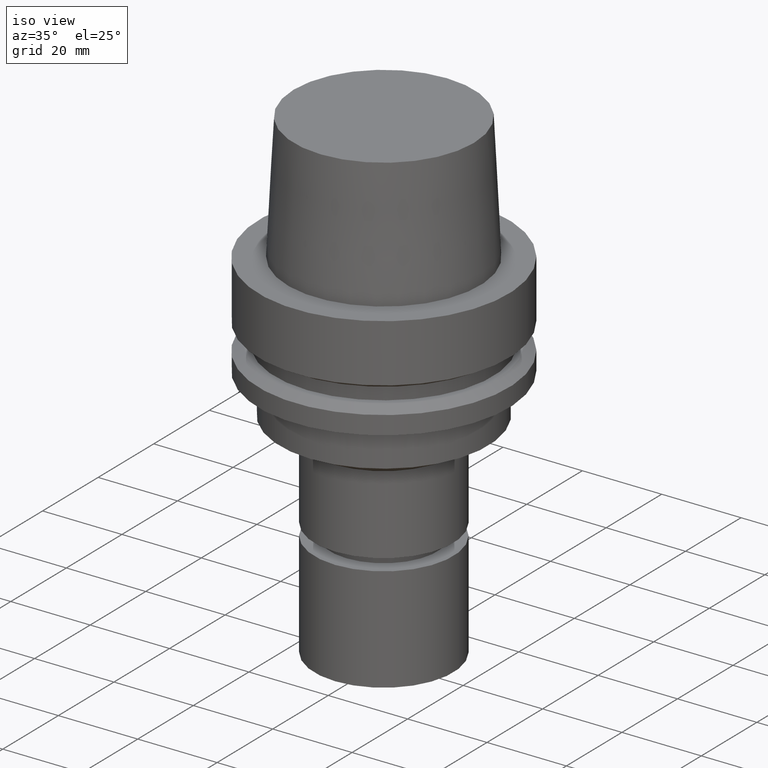
[diagram: clean part render]
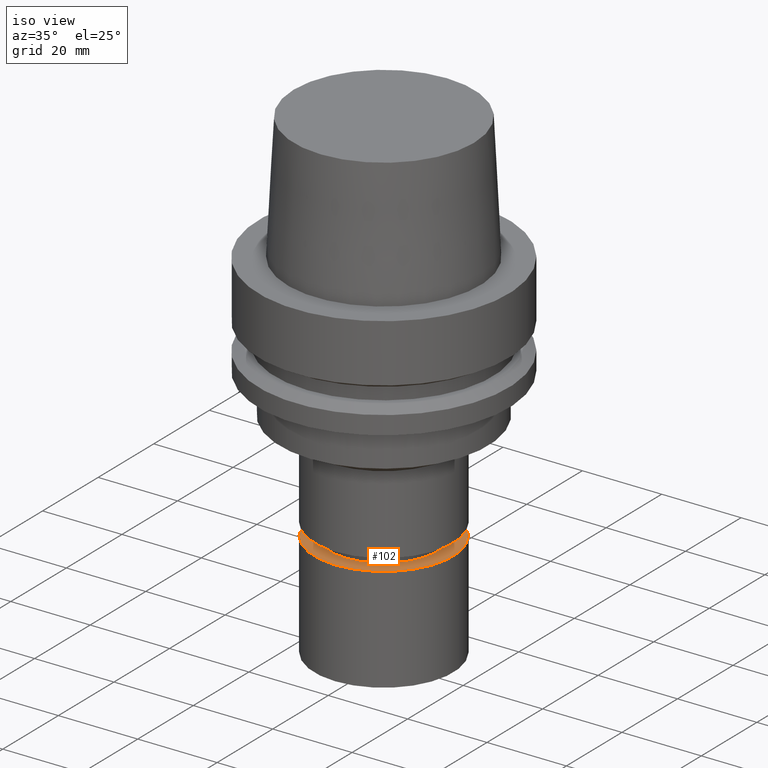
[diagram: same view with one face highlighted and labeled with its STEP entity id]
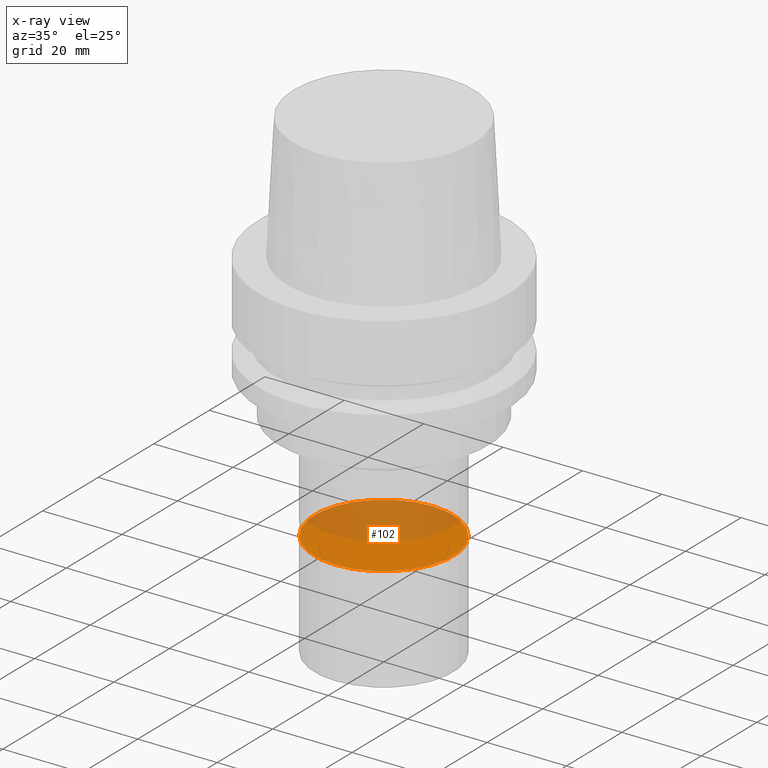
[diagram: x-ray of the same camera — body ghosted, the highlighted face saturated]
A machine part, iso view. The second image highlights one B-rep face of the part: STEP entity #102.
The next image is the same camera in x-ray: the body ghosted, the highlighted face saturated — about 50% of this face is hidden behind the body in this view.
In plain terms, the highlighted planar face has unit normal (-0, -0, 1).
Its self-contained STEP definition (entity closure, byte-faithful):
#102=ADVANCED_FACE('Unnamed[1]',(#252),#253,.T.);
#194=EDGE_CURVE('Unnamed[1]',#392,#392,#393,.T.);
#252=FACE_OUTER_BOUND('',#452,.T.);
#253=PLANE('',#453);
#392=VERTEX_POINT('',#627);
#393=CIRCLE('',#628,17.5);
#452=EDGE_LOOP('',(#673));
#453=AXIS2_PLACEMENT_3D('',#674,#675,#676);
#627=CARTESIAN_POINT('',(3.88825452162421E-015,17.5,-63.5000152587891));
#628=AXIS2_PLACEMENT_3D('',#826,#827,#828);
#673=ORIENTED_EDGE('',*,*,#194,.F.);
#674=CARTESIAN_POINT('',(3.88825452162421E-015,8.75000000000001,-63.5000152587891));
#675=DIRECTION('',(-6.12323399573677E-017,-1.22464679914735E-016,1.0));
#676=DIRECTION('',(1.23259516440783E-032,-1.0,-1.22464679914735E-016));
#826=CARTESIAN_POINT('',(3.88825452162421E-015,7.77650904324841E-015,-63.5000152587891));
#827=DIRECTION('',(6.12323399573677E-017,1.22464679914735E-016,-1.0));
#828=DIRECTION('',(-1.23259516440783E-032,1.0,1.22464679914735E-016));